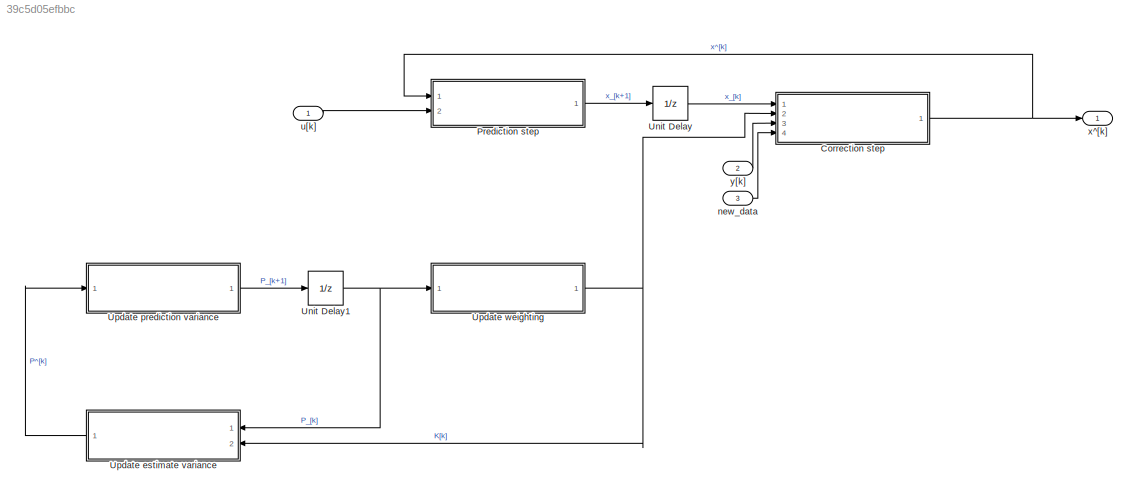
MODEL slx_39c5d05efbbc
KIND model
CONFIG AbsTol = auto
CONFIG FixedStep = auto
CONFIG MaxStep = auto
CONFIG MinStep = auto
CONFIG RelTol = 1e-3
CONFIG SampleTimeConstraint = Unconstrained
CONFIG Solver = VariableStepAuto
CONFIG SolverMode = SingleTasking
CONFIG SolverName = VariableStepAuto
CONFIG StartTime = 0.0
CONFIG StopTime = 10.0
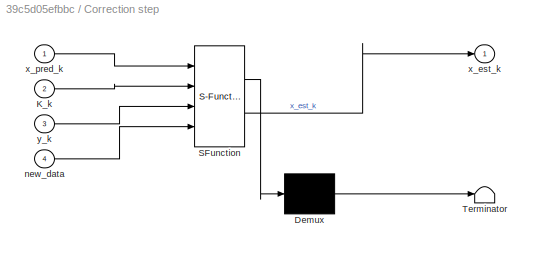
BLOCK [SubSystem] Correction step
  ErrorFcn = Stateflow.Translate.translate
  PermitHierarchicalResolution = ExplicitOnly
  Ports = [4, 1]
  RequestExecContextInheritance = off
  SFBlockType = MATLAB Function
  TreatAsAtomicUnit = on
BLOCK [Demux] Correction step/ Demux 
  Outputs = 1
  Ports = [1, 1]
BLOCK [S-Function] Correction step/ SFunction 
  EnableBusSupport = off
  FunctionName = sf_sfun
  PortCounts = [4 2]
  Ports = [4, 2]
  SFunctionDeploymentMode = off
  Tag = Stateflow S-Function Kalman_2015b 1
BLOCK [Terminator] Correction step/ Terminator 
BLOCK [Inport] Correction step/K_k
  Port = 2
BLOCK [Inport] Correction step/new_data
  Port = 4
BLOCK [Outport] Correction step/x_est_k
BLOCK [Inport] Correction step/x_pred_k
BLOCK [Inport] Correction step/y_k
  Port = 3
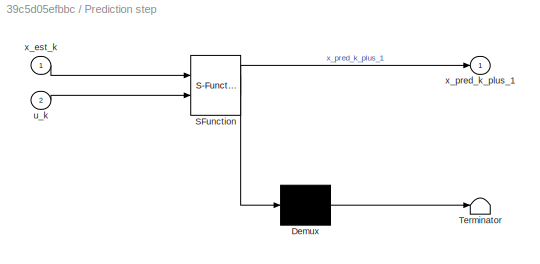
BLOCK [SubSystem] Prediction step
  ErrorFcn = Stateflow.Translate.translate
  PermitHierarchicalResolution = ExplicitOnly
  Ports = [2, 1]
  RequestExecContextInheritance = off
  SFBlockType = MATLAB Function
  TreatAsAtomicUnit = on
BLOCK [Demux] Prediction step/ Demux 
  Outputs = 1
  Ports = [1, 1]
BLOCK [S-Function] Prediction step/ SFunction 
  EnableBusSupport = off
  FunctionName = sf_sfun
  PortCounts = [2 2]
  Ports = [2, 2]
  SFunctionDeploymentMode = off
  Tag = Stateflow S-Function Kalman_2015b 2
BLOCK [Terminator] Prediction step/ Terminator 
BLOCK [Inport] Prediction step/u_k
  Port = 2
BLOCK [Inport] Prediction step/x_est_k
BLOCK [Outport] Prediction step/x_pred_k_plus_1
BLOCK [UnitDelay] Unit Delay
  HasFrameUpgradeWarning = on
  SampleTime = -1
BLOCK [UnitDelay] Unit Delay1
  HasFrameUpgradeWarning = on
  SampleTime = -1
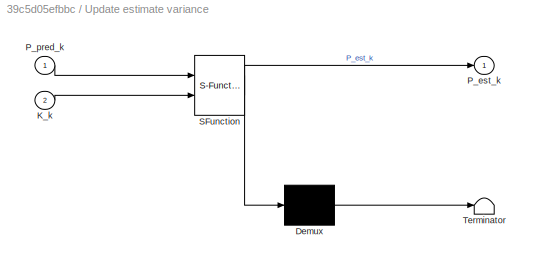
BLOCK [SubSystem] Update estimate variance
  ErrorFcn = Stateflow.Translate.translate
  PermitHierarchicalResolution = ExplicitOnly
  Ports = [2, 1]
  RequestExecContextInheritance = off
  SFBlockType = MATLAB Function
  TreatAsAtomicUnit = on
BLOCK [Demux] Update estimate variance/ Demux 
  Outputs = 1
  Ports = [1, 1]
BLOCK [S-Function] Update estimate variance/ SFunction 
  EnableBusSupport = off
  FunctionName = sf_sfun
  PortCounts = [2 2]
  Ports = [2, 2]
  SFunctionDeploymentMode = off
  Tag = Stateflow S-Function Kalman_2015b 5
BLOCK [Terminator] Update estimate variance/ Terminator 
BLOCK [Inport] Update estimate variance/K_k
  Port = 2
BLOCK [Outport] Update estimate variance/P_est_k
BLOCK [Inport] Update estimate variance/P_pred_k
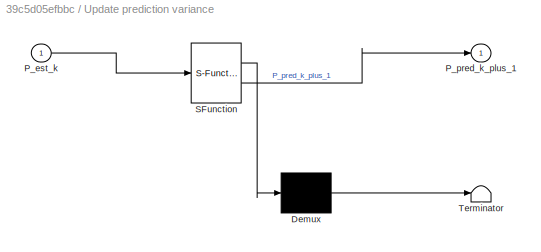
BLOCK [SubSystem] Update prediction variance
  ErrorFcn = Stateflow.Translate.translate
  PermitHierarchicalResolution = ExplicitOnly
  Ports = [1, 1]
  RequestExecContextInheritance = off
  SFBlockType = MATLAB Function
  TreatAsAtomicUnit = on
BLOCK [Demux] Update prediction variance/ Demux 
  Outputs = 1
  Ports = [1, 1]
BLOCK [S-Function] Update prediction variance/ SFunction 
  EnableBusSupport = off
  FunctionName = sf_sfun
  PortCounts = [1 2]
  Ports = [1, 2]
  SFunctionDeploymentMode = off
  Tag = Stateflow S-Function Kalman_2015b 3
BLOCK [Terminator] Update prediction variance/ Terminator 
BLOCK [Inport] Update prediction variance/P_est_k
BLOCK [Outport] Update prediction variance/P_pred_k_plus_1
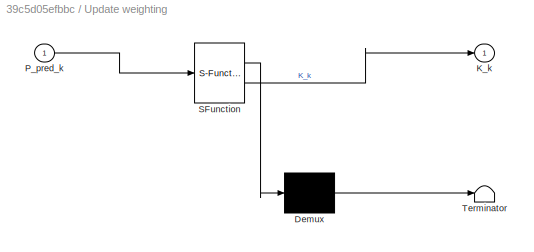
BLOCK [SubSystem] Update weighting
  ErrorFcn = Stateflow.Translate.translate
  PermitHierarchicalResolution = ExplicitOnly
  Ports = [1, 1]
  RequestExecContextInheritance = off
  SFBlockType = MATLAB Function
  TreatAsAtomicUnit = on
BLOCK [Demux] Update weighting/ Demux 
  Outputs = 1
  Ports = [1, 1]
BLOCK [S-Function] Update weighting/ SFunction 
  EnableBusSupport = off
  FunctionName = sf_sfun
  PortCounts = [1 2]
  Ports = [1, 2]
  SFunctionDeploymentMode = off
  Tag = Stateflow S-Function Kalman_2015b 4
BLOCK [Terminator] Update weighting/ Terminator 
BLOCK [Outport] Update weighting/K_k
BLOCK [Inport] Update weighting/P_pred_k
BLOCK [Inport] new_data
  Port = 3
BLOCK [Inport] u[k]
BLOCK [Outport] x^[k]
BLOCK [Inport] y[k]
  Port = 2
NET Correction step:1 -> Prediction step:1, x^[k]:1
LINE Prediction step:1 -> Unit Delay:1
NET Unit Delay1:1 -> Update estimate variance:1, Update weighting:1
LINE Unit Delay:1 -> Correction step:1
LINE Update estimate variance:1 -> Update prediction variance:1
LINE Update prediction variance:1 -> Unit Delay1:1
NET Update weighting:1 -> Correction step:2, Update estimate variance:2
LINE new_data:1 -> Correction step:4
LINE u[k]:1 -> Prediction step:2
LINE y[k]:1 -> Correction step:3
note: NET lines group one-source signal fan-out (src -> all destinations, sorted); 1:1 wires keep LINE
CHART Correction step states=1 transitions=1
  STATE_LABEL 'eML_blk_kernel()'
  STATE_LABEL 'SCRIPT:\nfunction x_est_k = fcn(x_pred_k, K_k, y_k, new_data)\n    if ~new_data\n        x_est_k = x_pred_k;\n    else\n        x_est_k = x_pred_k + K_k*(y_k - C_d*x_pred_k);\n    end\n'
CHART Prediction step states=1 transitions=1
  STATE_LABEL 'eML_blk_kernel()'
  STATE_LABEL 'SCRIPT:\nfunction x_pred_k_plus_1 = fcn(x_est_k, u_k)\nx_pred_k_plus_1 = A_d*x_est_k+B_d*u_k;'
CHART Update prediction variance states=1 transitions=1
  STATE_LABEL 'eML_blk_kernel()'
  STATE_LABEL "SCRIPT:\nfunction P_pred_k_plus_1 = fcn(P_est_k)\nP_pred_k_plus_1 = A_d*P_est_k*A_d' + Q_d;"
CHART Update weighting states=1 transitions=1
  STATE_LABEL 'eML_blk_kernel()'
  STATE_LABEL "SCRIPT:\nfunction K_k = fcn(P_pred_k)\nK_k = P_pred_k*C_d'*(C_d*P_pred_k*C_d' + R_d)^(-1);\n"
CHART Update estimate variance states=1 transitions=1
  STATE_LABEL 'eML_blk_kernel()'
  STATE_LABEL "SCRIPT:\nfunction P_est_k = fcn(P_pred_k, K_k)\ntemp = (eye(dim(K_k)) - K_k*C_d);\nP_est_k = temp*P_pred_k*temp' + K_k*R_d*K_k';\n"
